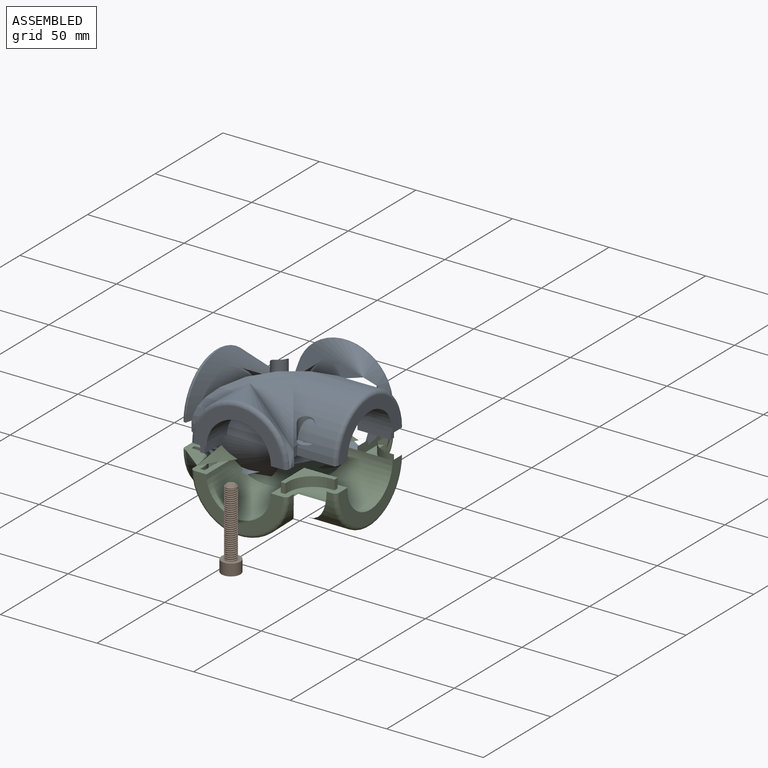
[diagram: assembled view]
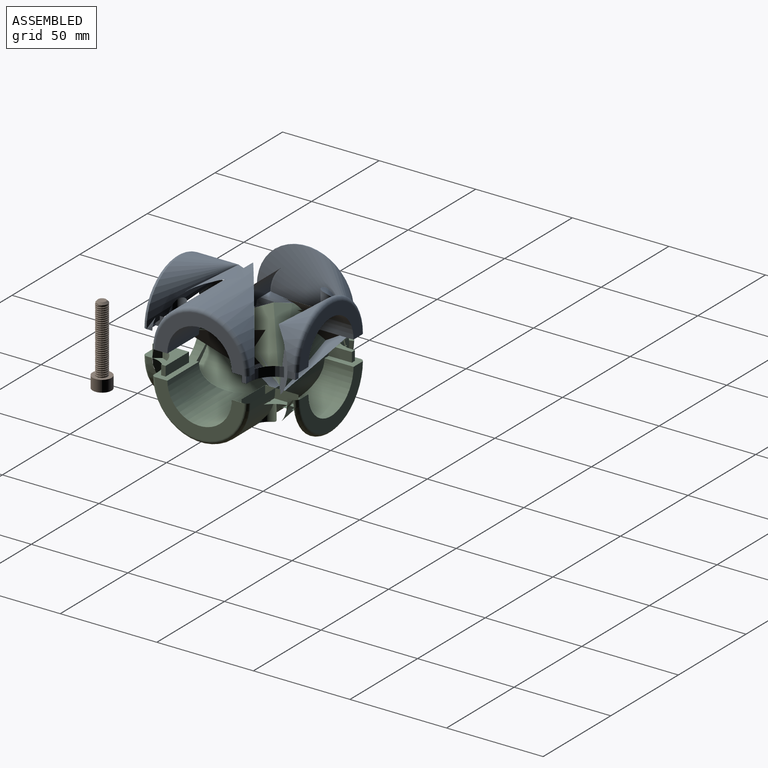
[diagram: assembled view, second angle]
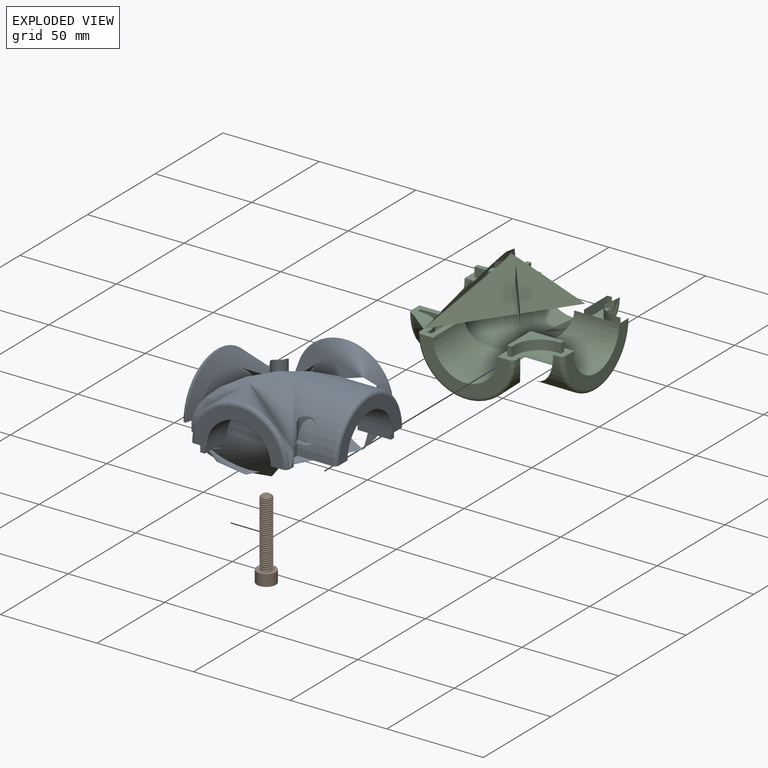
[diagram: exploded view]
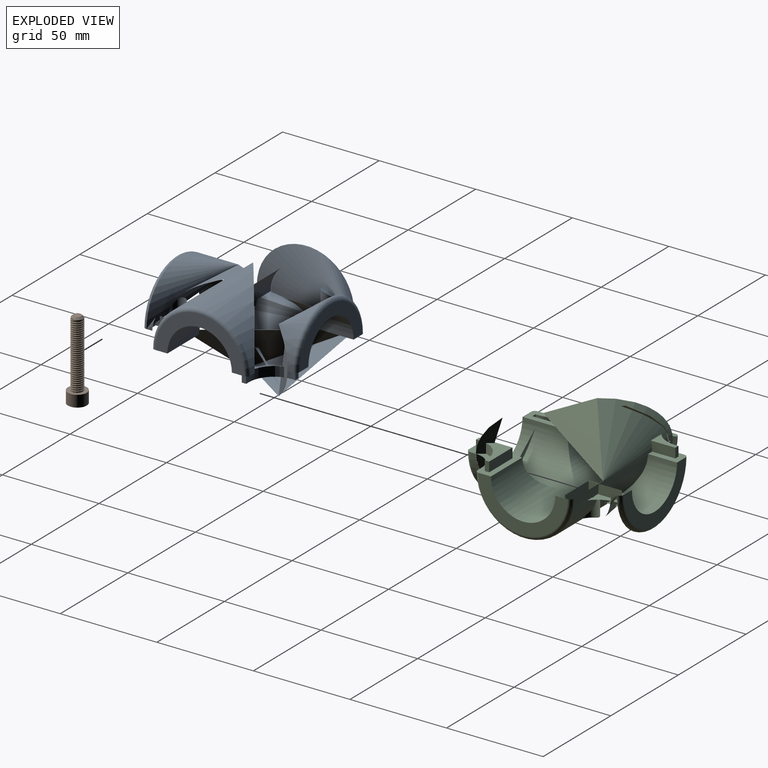
[diagram: exploded view, second angle]
ASSEMBLY  parts=3 mates=2
PART A: 64 faces, bbox 127.9x127.9x100 mm
  f0: bspline ~10.2x10.2mm, area 0mm2, adj f1
  f1: plane 23.62x23.62mm, normal (0,0,1), area 227.1mm2, adj f0,f2,f4,f5,f6,f7,f8,f9
  f2: cylinder r=13mm len=13mm, axis (0,0,-1), area 102.1mm2, adj f1,f3,f4,f9
  f3: plane 17.3x17.3mm, normal (0,0,1), area 103.5mm2, adj f2,f4,f5,f6,f7,f8,f9,f63
  f4: plane 5x2mm, normal (-1,0,0), area 10mm2, adj f1,f2,f3,f5
  f5: plane 5x2.3mm, normal (0,1,0), area 11.5mm2, adj f1,f3,f4,f6
  f6: plane 17.3x5mm, normal (1,0,0), area 86.5mm2, adj f1,f3,f5,f7
  f7: plane 17.3x5mm, normal (0,-1,0), area 86.5mm2, adj f1,f3,f6,f8
  f8: plane 5x2.3mm, normal (-1,0,0), area 11.5mm2, adj f1,f3,f7,f9
  f9: plane 5x2mm, normal (0,1,0), area 10mm2, adj f1,f2,f3,f8
  f10: plane 46x23mm, normal (1,0,0), area 392.9mm2, adj f1,f11,f53,f59
  f11: plane 71.22x71.22mm, normal (0,0,1), area 227.1mm2, adj f10,f12,f14,f15,f16,f17,f18,f19
  f12: plane 17.3x5mm, normal (0,-1,0), area 86.5mm2, adj f11,f13,f14,f19
  f13: plane 17.3x17.3mm, normal (0,0,1), area 110.6mm2, adj f12,f14,f15,f16,f17,f18,f19
  f14: plane 17.3x5mm, normal (-1,0,0), area 86.5mm2, adj f11,f12,f13,f15
  f15: plane 5x2.3mm, normal (0,1,0), area 11.5mm2, adj f11,f13,f14,f16
  f16: plane 5x2mm, normal (1,0,0), area 10mm2, adj f11,f13,f15,f17
  f17: cylinder r=13mm len=13mm, axis (0,0,1), area 102.1mm2, adj f11,f13,f16,f18
  f18: plane 5x2mm, normal (0,1,0), area 10mm2, adj f11,f13,f17,f19
  f19: plane 5x2.3mm, normal (1,0,0), area 11.5mm2, adj f11,f12,f13,f18
  f20: bspline ~50x35mm, area 88.5mm2, adj f11,f21
  f21: cylinder r=25mm len=73.08mm, axis (0,1,0), area 1947.1mm2, adj f11,f20,f22,f23,f50
  f22: bspline ~35x35mm, area 53.4mm2, adj f21,f23
  f23: plane 106.72x65.02mm, normal (0,0,1), area 439.5mm2, adj f21,f22,f24,f30,f31,f32,f33,f34
  f24: cylinder r=13mm len=13mm, axis (0,0,-1), area 102.1mm2, adj f23,f25,f30,f35
  f25: plane 17.3x17.3mm, normal (0,0,1), area 103.5mm2, adj f24,f26,f30,f31,f32,f33,f34,f35
  f26: cylinder r=1.5mm len=3mm, axis (0,0,1), area 18.8mm2, adj f25,f27
  f27: plane 8x8mm, normal (0,0,-1), area 43.2mm2, adj f26,f28
  f28: cylinder r=4mm len=9.86mm, axis (0,0,1), area 169.5mm2, adj f27,f29
  f29: bspline ~17.55x17.55mm, area 72.2mm2, adj f28
  f30: plane 5x2mm, normal (1,0,0), area 10mm2, adj f23,f24,f25,f31
  f31: plane 5x2.3mm, normal (0,-1,0), area 11.5mm2, adj f23,f25,f30,f32
  f32: plane 17.3x5mm, normal (-1,0,0), area 86.5mm2, adj f23,f25,f31,f33
  f33: plane 17.3x5mm, normal (0,1,0), area 86.5mm2, adj f23,f25,f32,f34
  f34: plane 5x2.3mm, normal (1,0,0), area 11.5mm2, adj f23,f25,f33,f35
  f35: plane 5x2mm, normal (0,-1,0), area 10mm2, adj f23,f24,f25,f34
  f36: torus R=23mm, axis (1,0,0), area 239.6mm2, adj f23,f37,f47,f49
  f37: plane 23.62x23.62mm, normal (0,0,1), area 227.1mm2, adj f36,f38,f39,f41,f42,f43,f44,f45
  f38: bspline ~50x35mm, area 151.4mm2, adj f37,f47,f57
  f39: plane 5x2.3mm, normal (-1,0,0), area 11.5mm2, adj f37,f40,f41,f46
  f40: plane 17.3x17.3mm, normal (0,0,1), area 110.6mm2, adj f39,f41,f42,f43,f44,f45,f46
  f41: plane 17.3x5mm, normal (0,1,0), area 86.5mm2, adj f37,f39,f40,f42
  f42: plane 17.3x5mm, normal (1,0,0), area 86.5mm2, adj f37,f40,f41,f43
  f43: plane 5x2.3mm, normal (0,-1,0), area 11.5mm2, adj f37,f40,f42,f44
  f44: plane 5x2mm, normal (-1,0,0), area 10mm2, adj f37,f40,f43,f45
  f45: cylinder r=13mm len=13mm, axis (0,0,1), area 102.1mm2, adj f37,f40,f44,f46
  f46: plane 5x2mm, normal (0,-1,0), area 10mm2, adj f37,f39,f40,f45
  f47: cylinder r=25mm len=73.18mm, axis (-1,0,0), area 3714.2mm2, adj f23,f36,f37,f38
  f48: cylinder r=16.7mm len=40mm, axis (-1,0,0), area 1660.5mm2, adj f23,f37,f49,f52,f54
  f49: plane 46x23mm, normal (-1,0,0), area 392.9mm2, adj f23,f36,f37,f48
  f50: torus R=23mm, axis (0,-1,0), area 239.6mm2, adj f11,f21,f23,f51
  f51: plane 46x23mm, normal (0,1,0), area 392.9mm2, adj f11,f23,f50,f52
  f52: cylinder r=16.7mm len=40mm, axis (0,1,0), area 1225mm2, adj f11,f23,f48,f51,f53
  f53: cylinder r=16.7mm len=40mm, axis (-1,0,0), area 1660.5mm2, adj f1,f10,f11,f52,f54
  f54: cylinder r=16.7mm len=40mm, axis (0,1,0), area 1660.5mm2, adj f1,f37,f48,f53,f55
  f55: plane 46x23mm, normal (0,-1,0), area 392.9mm2, adj f1,f37,f54,f56
  f56: torus R=23mm, axis (0,-1,0), area 239.6mm2, adj f1,f37,f55,f57
  f57: cylinder r=25mm len=50mm, axis (0,1,0), area 1329.1mm2, adj f1,f37,f38,f56
  f58: cylinder r=25mm len=50mm, axis (-1,0,0), area 235.6mm2, adj f1,f11,f59
  f59: torus R=23mm, axis (1,0,0), area 239.6mm2, adj f1,f10,f11,f58
  f60: bspline ~17.55x17.55mm, area 72.1mm2, adj f61
  f61: cylinder r=4mm len=9.86mm, axis (0,0,1), area 171.6mm2, adj f60,f62
  f62: plane 8x8mm, normal (0,0,-1), area 43.2mm2, adj f61,f63
  f63: cylinder r=1.5mm len=3mm, axis (0,0,1), area 18.8mm2, adj f3,f62
PART B: 16 faces, bbox 10x10x41.2 mm
  f0: cone r=2mm half-angle=45deg, axis (0,0,-1), area 21.3mm2, adj f2,f3,f14,f15
  f1: plane 9.8x9.8mm, normal (0,0,-1), area 53.8mm2, adj f4,f6,f7,f8,f9,f10,f11
  f2: cylinder r=3mm len=34mm, axis (0,0,-1), area 157.5mm2, adj f0,f5,f13,f14,f15
  f3: plane 4x4mm, normal (0,0,1), area 12.6mm2, adj f0
  f4: cylinder r=4.9mm len=9.8mm, axis (0,0,1), area 184.7mm2, adj f1,f5
  f5: plane 9.8x9.8mm, normal (0,0,1), area 42.6mm2, adj f2,f4,f13,f15
  f6: plane 4x2.5mm, normal (0.87,0.5,0), area 11.5mm2, adj f1,f7,f11,f12
  f7: plane 4x2.5mm, normal (0.87,-0.5,0), area 11.5mm2, adj f1,f6,f8,f12
  f8: plane 4x2.89mm, normal (0,-1,0), area 11.5mm2, adj f1,f7,f9,f12
  f9: plane 4x2.5mm, normal (-0.87,-0.5,0), area 11.5mm2, adj f1,f8,f10,f12
  f10: plane 4x2.5mm, normal (-0.87,0.5,0), area 11.5mm2, adj f1,f9,f11,f12
  f11: plane 4x2.89mm, normal (0,1,0), area 11.5mm2, adj f1,f6,f10,f12
  f12: plane 5.77x5mm, normal (0,0,-1), area 21.7mm2, adj f6,f7,f8,f9,f10,f11
  f13: plane 0.99x0.98mm, normal (-0.33,0.94,0.05), area 0.4mm2, adj f2,f5,f15
  f14: plane 0.75x0.37mm, normal (0.33,-0.94,-0.05), area 0.1mm2, adj f0,f2,f15
  f15: bspline ~34.84x7.16mm, area 619.3mm2, adj f0,f2,f5,f13,f14
PART C: same geometry as A
PLACE A t=(-7.23,5.07,-6.33)mm
PLACE B t=(8.19,-62.62,-39.43)mm
PLACE C rot(axis=(1,0,0),180deg) t=(-7.23,5.07,-19.08)mm fixed
MATE planar A.f55 <-> C.f51  axis (0,1,0) through (-7.23,45.07,6.41)mm
MATE planar A.f10 <-> C.f10  axis (-1,0,0) through (-47.23,5.07,6.41)mm
